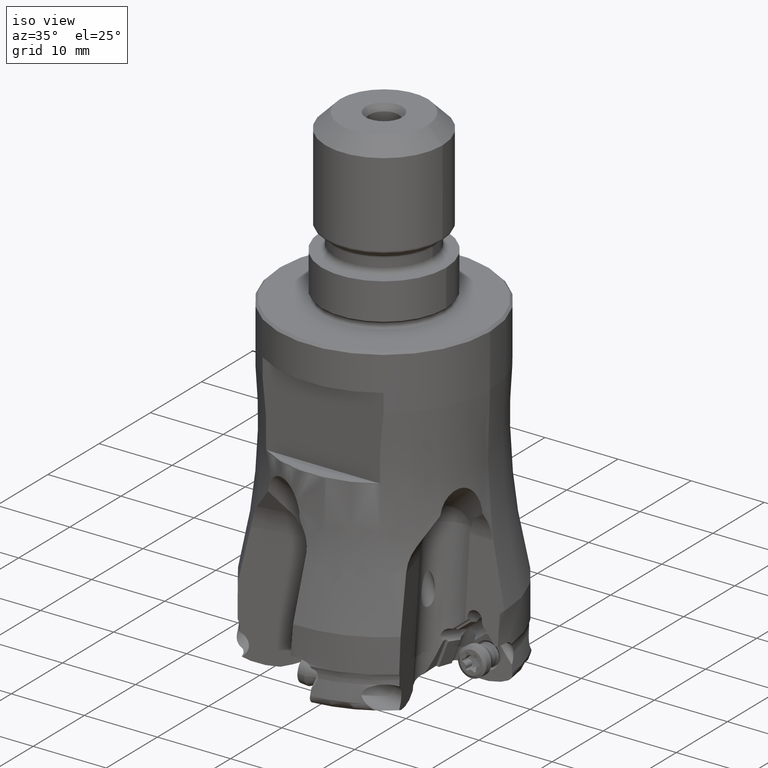
[diagram: clean part render]
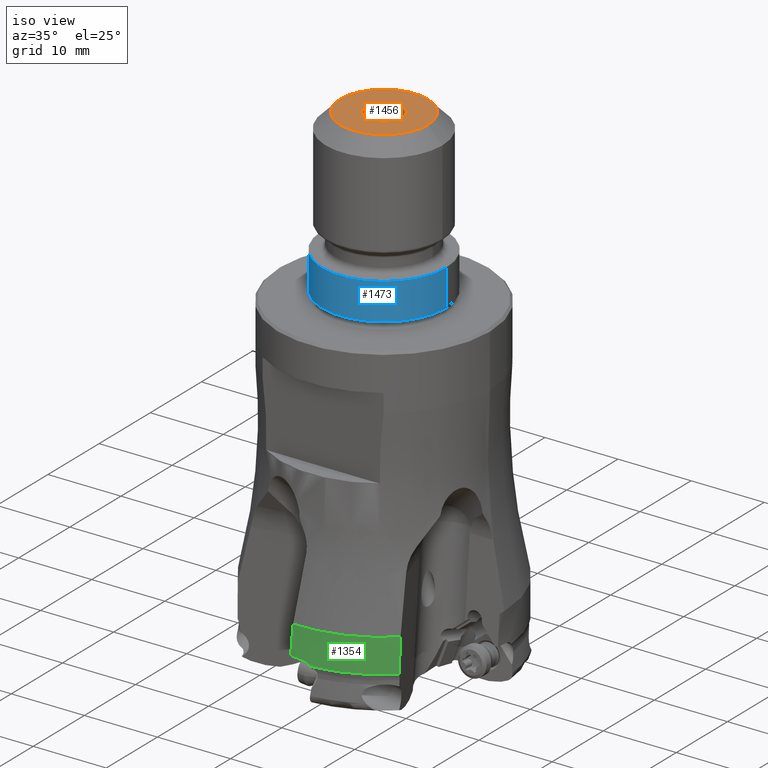
[diagram: same view with three faces highlighted in distinct colors, each labeled with its STEP entity id]
A machine part, iso view with three faces highlighted in distinct colors.
Their STEP definitions:

[orange] entity #1456 — the highlighted planar face has unit normal (0, 0, 1).
#229=PLANE('',#9576);
#510=FACE_BOUND('',#2521,.T.);
#511=FACE_BOUND('',#2522,.T.);
#1456=ADVANCED_FACE('',(#510,#511),#229,.T.);
#2521=EDGE_LOOP('',(#4337,#4338,#4339));
#2522=EDGE_LOOP('',(#4340,#4341));
#3014=CIRCLE('',#9570,2.499999999998);
#3015=CIRCLE('',#9572,6.);
#3016=CIRCLE('',#9573,6.);
#3017=CIRCLE('',#9574,6.);
#3018=CIRCLE('',#9575,2.499999999998);
#4337=ORIENTED_EDGE('',*,*,#7758,.F.);
#4338=ORIENTED_EDGE('',*,*,#7759,.T.);
#4339=ORIENTED_EDGE('',*,*,#7760,.F.);
#4340=ORIENTED_EDGE('',*,*,#7761,.F.);
#4341=ORIENTED_EDGE('',*,*,#7757,.F.);
#6662=VERTEX_POINT('',#17676);
#6663=VERTEX_POINT('',#17678);
#6664=VERTEX_POINT('',#17682);
#6665=VERTEX_POINT('',#17683);
#6666=VERTEX_POINT('',#17685);
#7757=EDGE_CURVE('',#6663,#6662,#3014,.T.);
#7758=EDGE_CURVE('',#6664,#6665,#3015,.T.);
#7759=EDGE_CURVE('',#6664,#6666,#3016,.T.);
#7760=EDGE_CURVE('',#6665,#6666,#3017,.T.);
#7761=EDGE_CURVE('',#6662,#6663,#3018,.T.);
#9570=AXIS2_PLACEMENT_3D('',#17679,#11073,#11074);
#9572=AXIS2_PLACEMENT_3D('',#17681,#11077,#11078);
#9573=AXIS2_PLACEMENT_3D('',#17684,#11079,#11080);
#9574=AXIS2_PLACEMENT_3D('',#17686,#11081,#11082);
#9575=AXIS2_PLACEMENT_3D('',#17687,#11083,#11084);
#9576=AXIS2_PLACEMENT_3D('',#17688,#11085,#11086);
#11073=DIRECTION('',(0.,0.,1.));
#11074=DIRECTION('',(-1.,0.,0.));
#11077=DIRECTION('',(0.,0.,-1.));
#11078=DIRECTION('',(-1.,0.,0.));
#11079=DIRECTION('',(0.,0.,1.));
#11080=DIRECTION('',(0.999998842813095,-0.00152130617254699,0.));
#11081=DIRECTION('',(0.,0.,-1.));
#11082=DIRECTION('',(0.999998842813095,-0.00152130617254699,0.));
#11083=DIRECTION('',(0.,0.,1.));
#11084=DIRECTION('',(1.,0.,0.));
#11085=DIRECTION('',(0.,0.,1.));
#11086=DIRECTION('',(1.,0.,0.));
#17676=CARTESIAN_POINT('',(2.499999999998,-1.64135584223E-14,23.));
#17678=CARTESIAN_POINT('',(-2.499999999998,-1.50990331349E-14,23.));
#17679=CARTESIAN_POINT('',(2.361844902176E-14,-1.560321492871E-14,23.));
#17681=CARTESIAN_POINT('',(2.6645352591E-14,-1.545985561789E-14,23.));
#17682=CARTESIAN_POINT('',(-6.,-1.248307013311E-14,23.));
#17683=CARTESIAN_POINT('',(5.999999283645,-1.348574030223E-14,23.));
#17684=CARTESIAN_POINT('',(0.,-1.190714193909E-14,23.));
#17685=CARTESIAN_POINT('',(5.999993056879,-0.009127837035291,23.));
#17686=CARTESIAN_POINT('',(0.,-1.190714193909E-14,23.));
#17687=CARTESIAN_POINT('',(2.361844902176E-14,-1.560321492871E-14,23.));
#17688=CARTESIAN_POINT('',(1.465494392505E-14,-3.057000856899E-7,23.));

[blue] entity #1473 — the highlighted cylindrical surface (partial cylindrical patch) has radius 8.5 mm, axis along (0, 0, 1).
#341=CYLINDRICAL_SURFACE('',#9618,8.5);
#674=LINE('',#17752,#1032);
#675=LINE('',#17756,#1033);
#1032=VECTOR('',#11171,1.);
#1033=VECTOR('',#11174,1.);
#1473=ADVANCED_FACE('',(#2035),#341,.T.);
#2035=FACE_OUTER_BOUND('',#2540,.T.);
#2540=EDGE_LOOP('',(#4409,#4410,#4411,#4412));
#3040=CIRCLE('',#9612,8.5);
#3043=CIRCLE('',#9617,8.5);
#4409=ORIENTED_EDGE('',*,*,#7796,.F.);
#4410=ORIENTED_EDGE('',*,*,#7793,.T.);
#4411=ORIENTED_EDGE('',*,*,#7791,.T.);
#4412=ORIENTED_EDGE('',*,*,#7795,.T.);
#6682=VERTEX_POINT('',#17748);
#6683=VERTEX_POINT('',#17749);
#6684=VERTEX_POINT('',#17753);
#6685=VERTEX_POINT('',#17755);
#7791=EDGE_CURVE('',#6682,#6683,#3040,.T.);
#7793=EDGE_CURVE('',#6684,#6682,#674,.T.);
#7795=EDGE_CURVE('',#6683,#6685,#675,.T.);
#7796=EDGE_CURVE('',#6684,#6685,#3043,.T.);
#9612=AXIS2_PLACEMENT_3D('',#17747,#11165,#11166);
#9617=AXIS2_PLACEMENT_3D('',#17758,#11177,#11178);
#9618=AXIS2_PLACEMENT_3D('',#17759,#11179,#11180);
#11165=DIRECTION('',(0.,0.,-1.));
#11166=DIRECTION('',(1.,0.,0.));
#11171=DIRECTION('',(-2.6645352591E-14,0.,1.));
#11174=DIRECTION('',(-1.563194018672E-14,0.,-1.));
#11177=DIRECTION('',(0.,0.,-1.));
#11178=DIRECTION('',(1.,0.,0.));
#11179=DIRECTION('',(0.,0.,1.));
#11180=DIRECTION('',(1.,0.,0.));
#17747=CARTESIAN_POINT('',(1.95399252334E-14,-1.519825931774E-14,6.));
#17748=CARTESIAN_POINT('',(8.5,-1.526948902144E-14,6.));
#17749=CARTESIAN_POINT('',(-8.5,-1.446875987902E-14,6.));
#17752=CARTESIAN_POINT('',(8.5,-1.620466851708E-14,0.9999999999998));
#17753=CARTESIAN_POINT('',(8.5,-1.620466851708E-14,0.9999999999998));
#17755=CARTESIAN_POINT('',(-8.5,-1.411539638374E-14,0.9999999999998));
#17756=CARTESIAN_POINT('',(-8.5,-1.446875987902E-14,6.));
#17758=CARTESIAN_POINT('',(1.95399252334E-14,-1.512887037869E-14,1.));
#17759=CARTESIAN_POINT('',(1.95399252334E-14,-1.512748259991E-14,0.9));

[green] entity #1354 — the highlighted cylindrical surface (partial cylindrical patch) has radius 16.5 mm, axis along (0, 0, 1).
#292=CYLINDRICAL_SURFACE('',#9362,16.5);
#1269=ELLIPSE('',#9359,189.316268553497,16.5);
#1270=ELLIPSE('',#9360,16.933055202536,16.5);
#1354=ADVANCED_FACE('',(#1925),#292,.T.);
#1925=FACE_OUTER_BOUND('',#2412,.T.);
#2412=EDGE_LOOP('',(#3654,#3655,#3656,#3657,#3658,#3659));
#2925=CIRCLE('',#9353,16.5);
#2926=CIRCLE('',#9361,16.5);
#3654=ORIENTED_EDGE('',*,*,#7345,.F.);
#3655=ORIENTED_EDGE('',*,*,#7351,.F.);
#3656=ORIENTED_EDGE('',*,*,#7352,.T.);
#3657=ORIENTED_EDGE('',*,*,#7353,.F.);
#3658=ORIENTED_EDGE('',*,*,#7354,.F.);
#3659=ORIENTED_EDGE('',*,*,#7148,.F.);
#6206=VERTEX_POINT('',#13013);
#6207=VERTEX_POINT('',#13018);
#6368=VERTEX_POINT('',#14236);
#6371=VERTEX_POINT('',#14256);
#6372=VERTEX_POINT('',#14258);
#6373=VERTEX_POINT('',#14269);
#7148=EDGE_CURVE('',#6206,#6207,#8564,.T.);
#7345=EDGE_CURVE('',#6368,#6206,#2925,.T.);
#7351=EDGE_CURVE('',#6371,#6368,#1269,.T.);
#7352=EDGE_CURVE('',#6371,#6372,#1270,.T.);
#7353=EDGE_CURVE('',#6373,#6372,#8665,.T.);
#7354=EDGE_CURVE('',#6207,#6373,#2926,.T.);
#8564=B_SPLINE_CURVE_WITH_KNOTS('',3,(#13014,#13015,#13016,#13017),
 .UNSPECIFIED.,.F.,.F.,(4,4),(0.,1.),.UNSPECIFIED.);
#8665=B_SPLINE_CURVE_WITH_KNOTS('',3,(#14259,#14260,#14261,#14262,#14263,
#14264,#14265,#14266,#14267,#14268),.UNSPECIFIED.,.F.,.F.,(4,3,3,4),(0.,
0.375498061445151,0.751633622834135,1.),.UNSPECIFIED.);
#9353=AXIS2_PLACEMENT_3D('',#14237,#10547,#10548);
#9359=AXIS2_PLACEMENT_3D('',#14255,#10561,#10562);
#9360=AXIS2_PLACEMENT_3D('',#14257,#10563,#10564);
#9361=AXIS2_PLACEMENT_3D('',#14270,#10565,#10566);
#9362=AXIS2_PLACEMENT_3D('',#14271,#10567,#10568);
#10547=DIRECTION('',(0.,0.,1.));
#10548=DIRECTION('',(-0.0549216309905601,-0.998490668183402,0.));
#10561=DIRECTION('',(-0.996194698091743,0.,0.0871557427476838));
#10562=DIRECTION('',(0.0871557427476838,0.,0.996194698091743));
#10563=DIRECTION('',(0.0852511806550765,0.207911690816091,0.97442545380286));
#10564=DIRECTION('',(-0.369678917347317,-0.90157776319507,0.224711003248818));
#10565=DIRECTION('',(0.,0.,-1.));
#10566=DIRECTION('',(0.655257659112404,-0.755405454159905,0.));
#10567=DIRECTION('',(0.,0.,1.));
#10568=DIRECTION('',(1.,0.,0.));
#13013=CARTESIAN_POINT('',(10.9231609081456,-12.36667116441,-34.3008844468211));
#13014=CARTESIAN_POINT('',(10.92316090884,-12.36667116728,-34.30088445777));
#13015=CARTESIAN_POINT('',(10.88610560234,-12.39940116147,-35.84311289061));
#13016=CARTESIAN_POINT('',(10.84896880835,-12.43190665773,-37.38534409316));
#13017=CARTESIAN_POINT('',(10.81175137536,-12.46418999364,-38.92757803657));
#13018=CARTESIAN_POINT('',(10.81175137536,-12.46418999364,-38.92757803653));
#14236=CARTESIAN_POINT('',(-0.906206911344755,-16.4750960250213,-34.3008844578115));
#14237=CARTESIAN_POINT('',(1.684314018209E-14,-1.541889815434E-14,-34.30088445781));
#14255=CARTESIAN_POINT('',(1.627008135683E-14,-1.535340571721E-14,-23.9428920640201));
#14256=CARTESIAN_POINT('',(-1.25248193895325,-16.4523946279135,-38.2588261345192));
#14257=CARTESIAN_POINT('',(1.627008135683E-14,-1.535340571721E-14,-41.8788267567748));
#14258=CARTESIAN_POINT('',(0.571253022874777,-16.4901082465779,-38.410335370963));
#14259=CARTESIAN_POINT('',(1.39661261209913,-16.4407868793354,-38.9275780365103));
#14260=CARTESIAN_POINT('',(1.33003198625278,-16.4464427729651,-38.8210837191632));
#14261=CARTESIAN_POINT('',(1.24458147646441,-16.4532864291353,-38.7243773828676));
#14262=CARTESIAN_POINT('',(1.14675041601622,-16.4601021711096,-38.6457094874401));
#14263=CARTESIAN_POINT('',(1.04882305843065,-16.4669246219597,-38.5669641575751));
#14264=CARTESIAN_POINT('',(0.935661434987888,-16.4738796766376,-38.5041487161018));
#14265=CARTESIAN_POINT('',(0.816753103307488,-16.4797728858209,-38.4633661350487));
#14266=CARTESIAN_POINT('',(0.737580547038946,-16.4836967524589,-38.4362119302292));
#14267=CARTESIAN_POINT('',(0.654620484468309,-16.4872202173587,-38.418245293184));
#14268=CARTESIAN_POINT('',(0.571253022874491,-16.4901082465779,-38.4103353709656));
#14269=CARTESIAN_POINT('',(1.39661261209913,-16.4407868793354,-38.9275780365103));
#14270=CARTESIAN_POINT('',(1.628131780438E-14,-1.535468988264E-14,-38.92757803651));
#14271=CARTESIAN_POINT('',(1.627008135683E-14,-1.535340571721E-14,-39.02011190808));